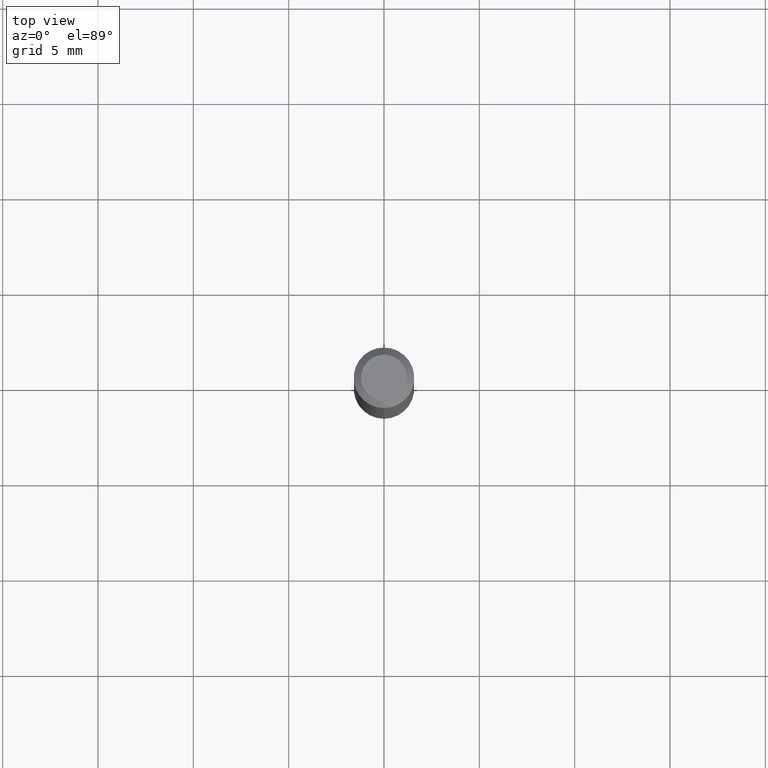
[diagram: clean part render]
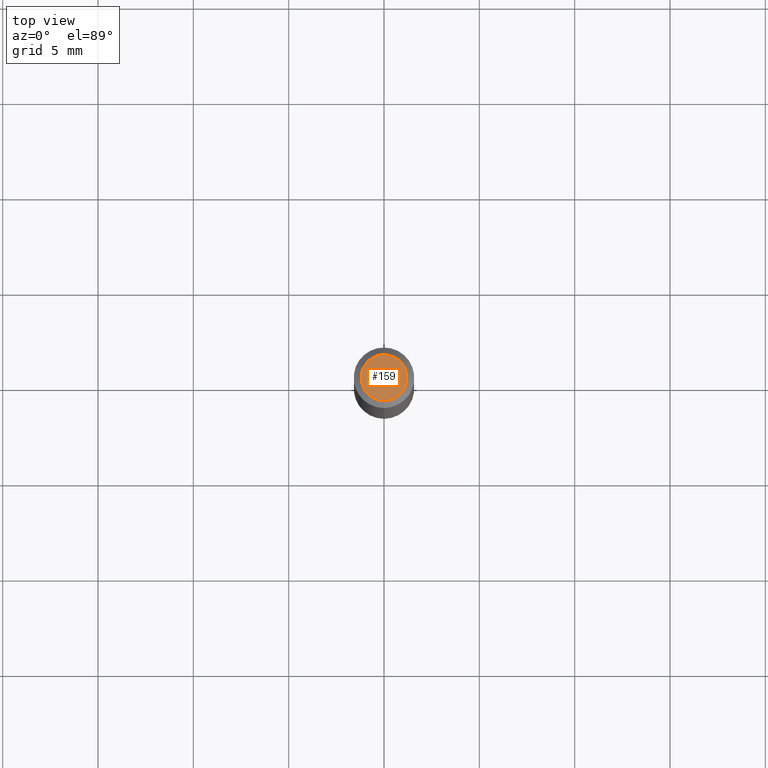
[diagram: same view with one face highlighted and labeled with its STEP entity id]
A machine part, top view. The second image highlights one B-rep face of the part: STEP entity #159.
In plain terms, the highlighted planar face has unit normal (0, -0, -1).
Its self-contained STEP definition (entity closure, byte-faithful):
#4 = ORIENTED_EDGE ( 'NONE', *, *, #61, .T. ) ;
#17 = DIRECTION ( 'NONE',  ( -2.445477922640170783E-29, 3.491468283560660393E-15, 1.000000000000000000 ) ) ;
#30 = AXIS2_PLACEMENT_3D ( 'NONE', #472, #396, #195 ) ;
#61 = EDGE_CURVE ( 'NONE', #127, #406, #411, .T. ) ;
#127 = VERTEX_POINT ( 'NONE', #458 ) ;
#144 = CARTESIAN_POINT ( 'NONE',  ( 3.316907271900976096E-16, 0.04749999999999999362, -1.985951705582884930E-16 ) ) ;
#159 = ADVANCED_FACE ( 'NONE', ( #307 ), #296, .F. ) ;
#181 = AXIS2_PLACEMENT_3D ( 'NONE', #144, #182, #342 ) ;
#182 = DIRECTION ( 'NONE',  ( 2.445477922640170503E-29, -3.491468283560659998E-15, -1.000000000000000000 ) ) ;
#195 = DIRECTION ( 'NONE',  ( -6.982962677686266711E-15, -1.000000000000000000, 3.491468283560660787E-15 ) ) ;
#276 = EDGE_LOOP ( 'NONE', ( #4, #281 ) ) ;
#280 = CARTESIAN_POINT ( 'NONE',  ( -3.773273898774340269E-16, -0.04749999999999999362, 1.003438892908170875E-16 ) ) ;
#281 = ORIENTED_EDGE ( 'NONE', *, *, #346, .T. ) ;
#296 = PLANE ( 'NONE',  #181 ) ;
#307 = FACE_OUTER_BOUND ( 'NONE', #276, .T. ) ;
#332 = CARTESIAN_POINT ( 'NONE',  ( 1.601808928071407067E-45, -2.286941549097159367E-31, -6.550085417831425799E-17 ) ) ;
#342 = DIRECTION ( 'NONE',  ( 6.982962677686265922E-15, 1.000000000000000000, -3.491468283560659998E-15 ) ) ;
#346 = EDGE_CURVE ( 'NONE', #406, #127, #473, .T. ) ;
#396 = DIRECTION ( 'NONE',  ( -2.445477922640170783E-29, 3.491468283560660393E-15, 1.000000000000000000 ) ) ;
#406 = VERTEX_POINT ( 'NONE', #280 ) ;
#410 = DIRECTION ( 'NONE',  ( -6.982962677686266711E-15, -1.000000000000000000, 3.491468283560660787E-15 ) ) ;
#411 = CIRCLE ( 'NONE', #418, 0.04749999999999999362 ) ;
#418 = AXIS2_PLACEMENT_3D ( 'NONE', #332, #17, #410 ) ;
#458 = CARTESIAN_POINT ( 'NONE',  ( 3.840629472727447874E-16, 0.04749999999999999362, -2.313455976474456035E-16 ) ) ;
#472 = CARTESIAN_POINT ( 'NONE',  ( 1.601808928071407067E-45, -2.286941549097159367E-31, -6.550085417831425799E-17 ) ) ;
#473 = CIRCLE ( 'NONE', #30, 0.04749999999999999362 ) ;